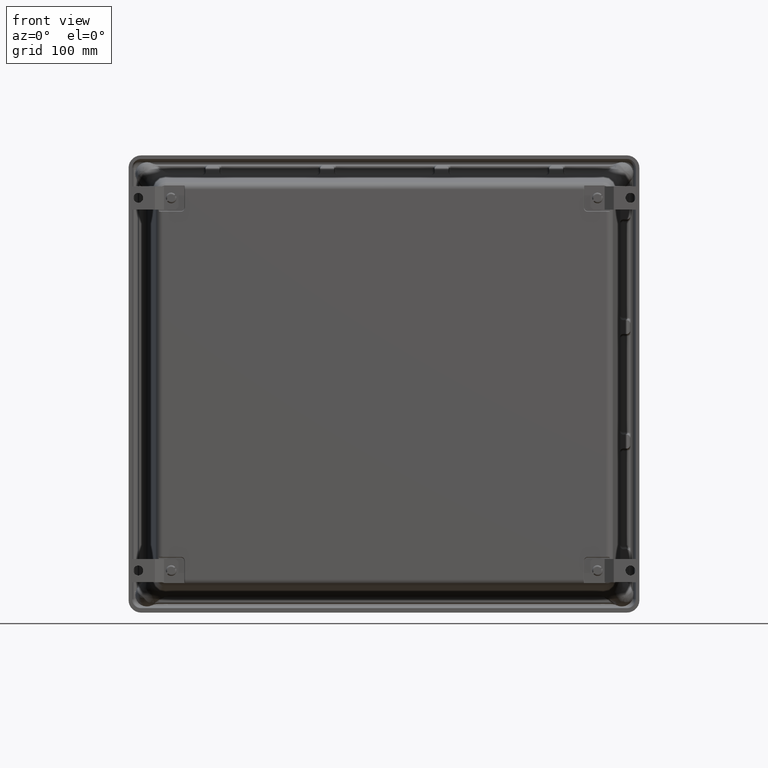
[diagram: clean part render]
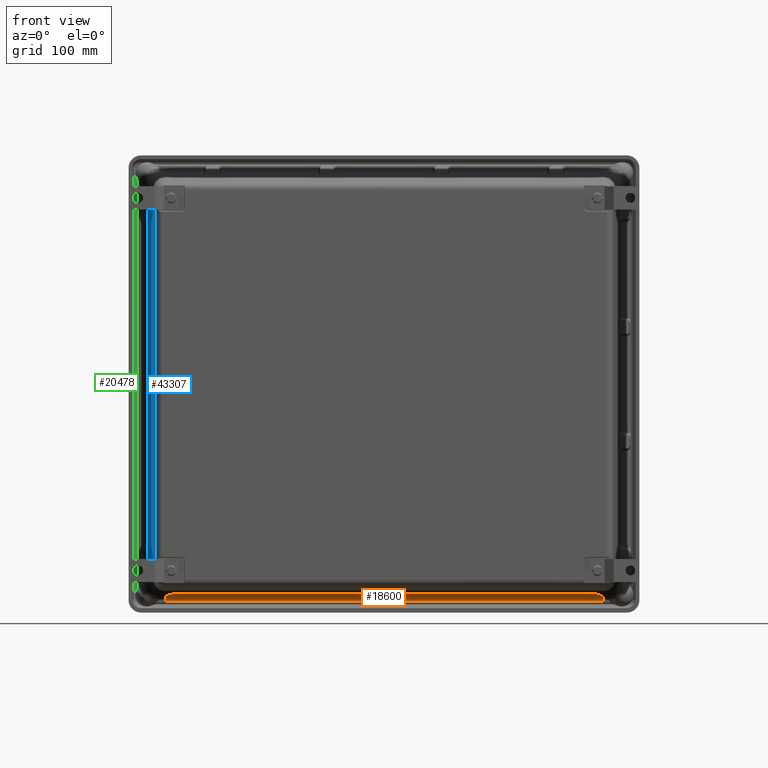
[diagram: same view with three faces highlighted in distinct colors, each labeled with its STEP entity id]
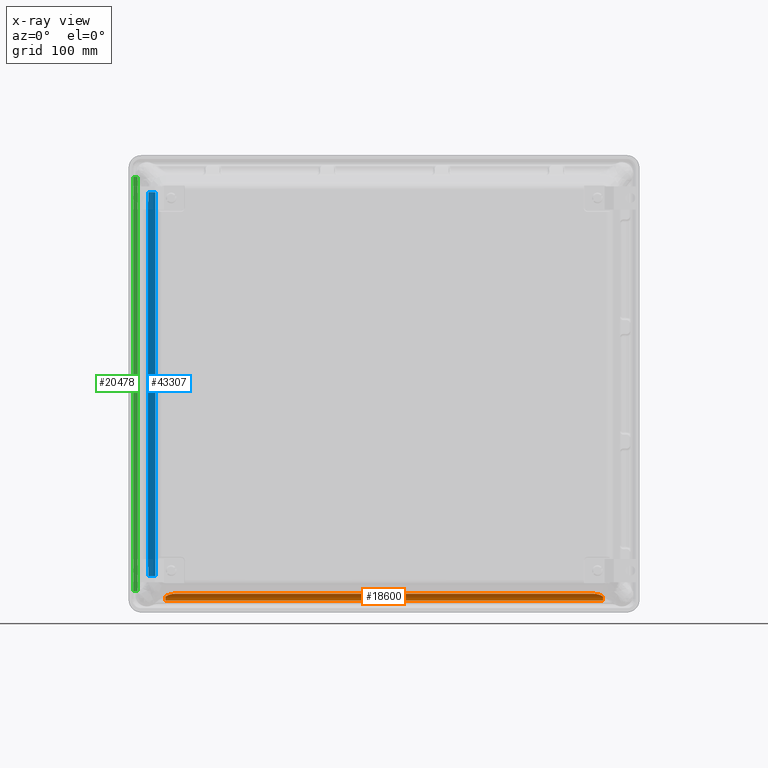
[diagram: x-ray of the same camera — body ghosted, the three highlighted faces saturated]
A machine part, front view with three faces highlighted in distinct colors.
The next image is the same camera in x-ray (body ghosted, the three faces saturated) — at least one of them is partly hidden behind the body in this view.
Their STEP definitions:

[orange] entity #18600 — the highlighted cylindrical surface (edge-blend (fillet) strip) has radius 6.3589 mm, axis along (-1, 0, 0).
#443 = ORIENTED_EDGE ( 'NONE', *, *, #1043, .T. ) ;
#774 = CARTESIAN_POINT ( 'NONE',  ( 7.307644187326540800, -0.4851430702196021200, -7.325131180635052500 ) ) ;
#1043 = EDGE_CURVE ( 'NONE', #43527, #33074, #24226, .T. ) ;
#2231 = CARTESIAN_POINT ( 'NONE',  ( -7.307748610823951600, -0.4851430702196021200, -7.325131180635052500 ) ) ;
#2262 = AXIS2_PLACEMENT_3D ( 'NONE', #19534, #43938, #23066 ) ;
#2320 = CARTESIAN_POINT ( 'NONE',  ( 7.654649388251297800, -0.4938801592190734100, -7.575328674179283800 ) ) ;
#2608 = ORIENTED_EDGE ( 'NONE', *, *, #38117, .T. ) ;
#2832 = CARTESIAN_POINT ( 'NONE',  ( 7.311278596396025600, -0.4829633852858825600, -7.325207296910189600 ) ) ;
#4670 = VERTEX_POINT ( 'NONE', #32727 ) ;
#4887 = ORIENTED_EDGE ( 'NONE', *, *, #40306, .F. ) ;
#5751 = CARTESIAN_POINT ( 'NONE',  ( -7.454800254234089400, -0.3984430998651526400, -7.343189957749108200 ) ) ;
#5828 = DIRECTION ( 'NONE',  ( 0.0000000000000000000, 0.0000000000000000000, 1.000000000000000000 ) ) ;
#6030 = CARTESIAN_POINT ( 'NONE',  ( 7.626260973653661100, -0.3085562811944240800, -7.405845636199021700 ) ) ;
#6186 = CARTESIAN_POINT ( 'NONE',  ( 7.540922641356059900, -0.3509637566787006700, -7.368943327736046100 ) ) ;
#6396 = CARTESIAN_POINT ( 'NONE',  ( -7.307748610823951600, -0.4851430702196021200, -7.325131180635052500 ) ) ;
#7211 = CYLINDRICAL_SURFACE ( 'NONE', #12371, 0.2503500000000002400 ) ;
#9261 = CARTESIAN_POINT ( 'NONE',  ( -7.541033200216891600, -0.3509605507350813700, -7.368945633146834600 ) ) ;
#9387 = LINE ( 'NONE', #19415, #44422 ) ;
#9708 = CARTESIAN_POINT ( 'NONE',  ( 7.454684942134324600, -0.3984492872052181600, -7.343187342839638800 ) ) ;
#12047 = B_SPLINE_CURVE_WITH_KNOTS ( 'NONE', 3,
 ( #44594, #6030, #27232, #6186, #30709, #9708, #34250, #13268, #37752, #16819, #41213, #20346, #44743, #23864, #2832, #27380 ),
 .UNSPECIFIED., .F., .F.,
 ( 4, 2, 2, 2, 2, 2, 2, 4 ),
 ( 0.0000000000000000000, 0.002583851419641042700, 0.005167702839282085400, 0.007751554258923128500, 0.009043479968743649600, 0.009689442823653905000, 0.01001242425110903400, 0.01033540567856415900 ),
 .UNSPECIFIED. ) ;
#12371 = AXIS2_PLACEMENT_3D ( 'NONE', #40770, #16361, #26626 ) ;
#12834 = CARTESIAN_POINT ( 'NONE',  ( -7.626366922773665500, -0.3085556255294985600, -7.405846478179388900 ) ) ;
#13268 = CARTESIAN_POINT ( 'NONE',  ( 7.381604656308240000, -0.4410401677366284100, -7.330457110413918000 ) ) ;
#13413 = CARTESIAN_POINT ( 'NONE',  ( -7.654753811748701500, -0.2435301592190732800, -7.575328674179283800 ) ) ;
#15889 = DIRECTION ( 'NONE',  ( 1.000000000000000000, -0.0000000000000000000, -0.0000000000000000000 ) ) ;
#16230 = CARTESIAN_POINT ( 'NONE',  ( -7.367044221340008500, -0.4496483197026051600, -7.328276590104714200 ) ) ;
#16361 = DIRECTION ( 'NONE',  ( -1.000000000000000000, 0.0000000000000000000, 0.0000000000000000000 ) ) ;
#16819 = CARTESIAN_POINT ( 'NONE',  ( 7.344627679792869100, -0.4630108717277922600, -7.326849308496977500 ) ) ;
#17096 = ORIENTED_EDGE ( 'NONE', *, *, #22763, .F. ) ;
#17625 = VECTOR ( 'NONE', #32017, 39.37007874015748100 ) ;
#18600 = ADVANCED_FACE ( 'NONE', ( #35192 ), #7211, .F. ) ;
#18783 = ORIENTED_EDGE ( 'NONE', *, *, #43859, .T. ) ;
#19415 = CARTESIAN_POINT ( 'NONE',  ( -7.654753811748701500, -0.4851430702196021200, -7.325131180635052500 ) ) ;
#19534 = CARTESIAN_POINT ( 'NONE',  ( -7.654753811748701500, -0.4938801592190733000, -7.575328674179284700 ) ) ;
#20335 = EDGE_CURVE ( 'NONE', #43527, #29720, #9387, .T. ) ;
#20346 = CARTESIAN_POINT ( 'NONE',  ( 7.326128486072125400, -0.4740674944536984500, -7.325754002188293000 ) ) ;
#20466 = VERTEX_POINT ( 'NONE', #44416 ) ;
#21208 = CARTESIAN_POINT ( 'NONE',  ( -8.306665211748706300, -0.2435301592190732800, -7.575328674179283800 ) ) ;
#21931 = AXIS2_PLACEMENT_3D ( 'NONE', #2320, #26854, #5828 ) ;
#22763 = EDGE_CURVE ( 'NONE', #20466, #4670, #42620, .T. ) ;
#23066 = DIRECTION ( 'NONE',  ( 0.0000000000000000000, 0.0000000000000000000, 1.000000000000000000 ) ) ;
#23864 = CARTESIAN_POINT ( 'NONE',  ( 7.315026666566900800, -0.4807165543232932400, -7.325315123836371200 ) ) ;
#24226 = B_SPLINE_CURVE_WITH_KNOTS ( 'NONE', 3,
 ( #2231, #33663, #16230, #26782, #5751, #30289, #9261, #33815, #12834, #37310 ),
 .UNSPECIFIED., .F., .F.,
 ( 4, 2, 2, 2, 4 ),
 ( -3.096732728220901400E-005, 0.002599933525867290700, 0.005230834379016790400, 0.007861735232166289600, 0.01049263608531578900 ),
 .UNSPECIFIED. ) ;
#24876 = ORIENTED_EDGE ( 'NONE', *, *, #20335, .F. ) ;
#26626 = DIRECTION ( 'NONE',  ( 0.0000000000000000000, 0.0000000000000000000, 1.000000000000000000 ) ) ;
#26782 = CARTESIAN_POINT ( 'NONE',  ( -7.425763825110924400, -0.4151801925353658100, -7.337006406825636000 ) ) ;
#26854 = DIRECTION ( 'NONE',  ( -1.000000000000000000, 0.0000000000000000000, 0.0000000000000000000 ) ) ;
#27232 = CARTESIAN_POINT ( 'NONE',  ( 7.597892607710004900, -0.3220759877962736700, -7.392289508907745200 ) ) ;
#27380 = CARTESIAN_POINT ( 'NONE',  ( 7.307644187326540800, -0.4851430702196021200, -7.325131180635052500 ) ) ;
#29172 = VERTEX_POINT ( 'NONE', #13413 ) ;
#29720 = VERTEX_POINT ( 'NONE', #774 ) ;
#30289 = CARTESIAN_POINT ( 'NONE',  ( -7.512435701576558600, -0.3663350237214779700, -7.359160095577133900 ) ) ;
#30709 = CARTESIAN_POINT ( 'NONE',  ( 7.512323581338144200, -0.3663391901116866400, -7.359157560825496900 ) ) ;
#32017 = DIRECTION ( 'NONE',  ( -1.000000000000000000, 0.0000000000000000000, 0.0000000000000000000 ) ) ;
#32727 = CARTESIAN_POINT ( 'NONE',  ( 7.654649388251297800, -0.2435301592190732800, -7.575328674179283800 ) ) ;
#33074 = VERTEX_POINT ( 'NONE', #38689 ) ;
#33663 = CARTESIAN_POINT ( 'NONE',  ( -7.337353315952136700, -0.4673880711267855400, -7.325751198865698500 ) ) ;
#33815 = CARTESIAN_POINT ( 'NONE',  ( -7.598000080715815200, -0.3220745363809381400, -7.392290967473207400 ) ) ;
#34250 = CARTESIAN_POINT ( 'NONE',  ( 7.425646882901460800, -0.4151874411049083500, -7.337003941138752000 ) ) ;
#35192 = FACE_OUTER_BOUND ( 'NONE', #45098, .T. ) ;
#36206 = LINE ( 'NONE', #21208, #17625 ) ;
#37310 = CARTESIAN_POINT ( 'NONE',  ( -7.654753811748701500, -0.2963558275853975800, -7.421513002309772000 ) ) ;
#37752 = CARTESIAN_POINT ( 'NONE',  ( 7.366814539798837400, -0.4497996913356547800, -7.328729450393844000 ) ) ;
#38117 = EDGE_CURVE ( 'NONE', #33074, #29172, #42896, .T. ) ;
#38689 = CARTESIAN_POINT ( 'NONE',  ( -7.654753811748701500, -0.2963558275853975800, -7.421513002309772000 ) ) ;
#40306 = EDGE_CURVE ( 'NONE', #4670, #29172, #36206, .T. ) ;
#40770 = CARTESIAN_POINT ( 'NONE',  ( -8.306665211748706300, -0.4938801592190733000, -7.575328674179283800 ) ) ;
#41213 = CARTESIAN_POINT ( 'NONE',  ( 7.337229033369808000, -0.4674281502036570200, -7.326340405264641500 ) ) ;
#42620 = CIRCLE ( 'NONE', #21931, 0.2503500000000002400 ) ;
#42896 = CIRCLE ( 'NONE', #2262, 0.2503500000000002400 ) ;
#43527 = VERTEX_POINT ( 'NONE', #6396 ) ;
#43859 = EDGE_CURVE ( 'NONE', #20466, #29720, #12047, .T. ) ;
#43938 = DIRECTION ( 'NONE',  ( -1.000000000000000000, 0.0000000000000000000, 0.0000000000000000000 ) ) ;
#44416 = CARTESIAN_POINT ( 'NONE',  ( 7.654649388251297800, -0.2963558275853954700, -7.421513002309772800 ) ) ;
#44422 = VECTOR ( 'NONE', #15889, 39.37007874015748100 ) ;
#44594 = CARTESIAN_POINT ( 'NONE',  ( 7.654649388251297800, -0.2963558275853954700, -7.421513002309772800 ) ) ;
#44743 = CARTESIAN_POINT ( 'NONE',  ( 7.322428092010362400, -0.4762827169210109800, -7.325588036970418500 ) ) ;
#45098 = EDGE_LOOP ( 'NONE', ( #17096, #18783, #24876, #443, #2608, #4887 ) ) ;

[blue] entity #43307 — the highlighted planar face has unit normal (-0.9994, -0.0349, 0).
#139 = CARTESIAN_POINT ( 'NONE',  ( -8.247879675952685100, -0.9309927066703646000, 6.716343695951409600 ) ) ;
#499 = CARTESIAN_POINT ( 'NONE',  ( -8.257484352773195400, -0.6559507485377984400, -6.409027597303401400 ) ) ;
#1199 = EDGE_CURVE ( 'NONE', #9947, #36485, #2463, .T. ) ;
#2101 = EDGE_CURVE ( 'NONE', #36438, #11123, #12102, .T. ) ;
#2254 = ORIENTED_EDGE ( 'NONE', *, *, #32558, .T. ) ;
#2286 = CARTESIAN_POINT ( 'NONE',  ( -8.251797798547007900, -0.8187923556659197900, 6.540073118754048000 ) ) ;
#2463 = LINE ( 'NONE', #24175, #16749 ) ;
#2508 = EDGE_CURVE ( 'NONE', #29608, #8979, #30349, .T. ) ;
#4028 = CARTESIAN_POINT ( 'NONE',  ( -8.255054279617036500, -0.7255389389335186200, -6.455391636318247500 ) ) ;
#4396 = ORIENTED_EDGE ( 'NONE', *, *, #22747, .T. ) ;
#4482 = ORIENTED_EDGE ( 'NONE', *, *, #2101, .T. ) ;
#4596 = PLANE ( 'NONE',  #31251 ) ;
#4933 = LINE ( 'NONE', #35172, #42155 ) ;
#5800 = CARTESIAN_POINT ( 'NONE',  ( -8.253354736003819500, -0.7742075003069363000, 6.494900140087128900 ) ) ;
#7536 = CARTESIAN_POINT ( 'NONE',  ( -8.253354617383134700, -0.7742108971589746200, -6.494995443011009500 ) ) ;
#7906 = CARTESIAN_POINT ( 'NONE',  ( -8.004937644646560100, -7.887942248218545100, 6.716343695951409600 ) ) ;
#8083 = DIRECTION ( 'NONE',  ( -0.9993908270190957600, -0.03489949670250101100, 1.628259326481935800E-016 ) ) ;
#8979 = VERTEX_POINT ( 'NONE', #7906 ) ;
#9314 = CARTESIAN_POINT ( 'NONE',  ( -8.255054437703762500, -0.7255344119219654400, 6.455296094528594400 ) ) ;
#9455 = VECTOR ( 'NONE', #20905, 39.37007874015748100 ) ;
#9947 = VERTEX_POINT ( 'NONE', #29747 ) ;
#10592 = DIRECTION ( 'NONE',  ( 1.629251822671396000E-016, -7.699026879608001300E-034, 1.000000000000000000 ) ) ;
#10805 = DIRECTION ( 'NONE',  ( -0.03489949670250101100, 0.9993908270190957600, 0.0000000000000000000 ) ) ;
#11078 = CARTESIAN_POINT ( 'NONE',  ( -8.251797716877110400, -0.8187946943858234200, -6.540167992619317700 ) ) ;
#11123 = VERTEX_POINT ( 'NONE', #28521 ) ;
#11688 = VECTOR ( 'NONE', #10592, 39.37007874015748100 ) ;
#12102 = B_SPLINE_CURVE_WITH_KNOTS ( 'NONE', 3,
 ( #21569, #42443, #499, #25073, #4028, #28570, #7536, #32067, #11078, #35576, #14618, #39083, #18178, #42582 ),
 .UNSPECIFIED., .F., .F.,
 ( 4, 2, 2, 2, 2, 2, 4 ),
 ( -2.809916676400758500E-005, 0.003180721168282206400, 0.004785131335805338200, 0.006389541503328469500, 0.007993951670851600800, 0.009598361838374732200, 0.01280718217342106900 ),
 .UNSPECIFIED. ) ;
#12890 = CARTESIAN_POINT ( 'NONE',  ( -8.256873071062848600, -0.6734555664224651800, 6.420367124764810600 ) ) ;
#14282 = CARTESIAN_POINT ( 'NONE',  ( -8.260066450263392900, -0.5820091508073409500, -6.368717038573833200 ) ) ;
#14305 = EDGE_LOOP ( 'NONE', ( #34529, #17116, #42432, #28785, #26699, #2254, #4396, #4482 ) ) ;
#14618 = CARTESIAN_POINT ( 'NONE',  ( -8.250430751166359000, -0.8579394707078998900, -6.589406240043008000 ) ) ;
#14727 = VECTOR ( 'NONE', #36938, 39.37007874015748900 ) ;
#14742 = CARTESIAN_POINT ( 'NONE',  ( -8.263449088335162800, -0.4851430702196021200, 6.367223695910734400 ) ) ;
#16425 = CARTESIAN_POINT ( 'NONE',  ( -8.258454490103819300, -0.6281696502188470800, 6.393849763910563600 ) ) ;
#16749 = VECTOR ( 'NONE', #34692, 39.37007874015748900 ) ;
#16976 = LINE ( 'NONE', #30065, #14727 ) ;
#17116 = ORIENTED_EDGE ( 'NONE', *, *, #2508, .T. ) ;
#17564 = EDGE_CURVE ( 'NONE', #35327, #9947, #34539, .T. ) ;
#17579 = DIRECTION ( 'NONE',  ( -0.03489949670250101100, 0.9993908270190957600, 5.686006861286415000E-018 ) ) ;
#18178 = CARTESIAN_POINT ( 'NONE',  ( -8.248505399687577000, -0.9130743233129103900, -6.678180365332896600 ) ) ;
#18846 = LINE ( 'NONE', #34644, #9455 ) ;
#19796 = CARTESIAN_POINT ( 'NONE',  ( -8.249210131349729000, -0.8928934489389830400, 6.641333158529783500 ) ) ;
#19954 = CARTESIAN_POINT ( 'NONE',  ( -8.259418998886149100, -0.6005497324343681600, 6.378565622634207300 ) ) ;
#20905 = DIRECTION ( 'NONE',  ( -1.629251822671396000E-016, 7.699026879608001300E-034, -1.000000000000000000 ) ) ;
#21569 = CARTESIAN_POINT ( 'NONE',  ( -8.260066450263392900, -0.5820091508073409500, -6.368717038573833200 ) ) ;
#22747 = EDGE_CURVE ( 'NONE', #33913, #36438, #16976, .T. ) ;
#23336 = CARTESIAN_POINT ( 'NONE',  ( -8.250865171873803300, -0.8454992892981572100, 6.572494162442026800 ) ) ;
#23484 = CARTESIAN_POINT ( 'NONE',  ( -8.260066450263389400, -0.5820091508073383900, 6.368624830476642600 ) ) ;
#24175 = CARTESIAN_POINT ( 'NONE',  ( -8.287224571990279300, 0.1956977016521380100, 6.357375568128786000 ) ) ;
#25073 = CARTESIAN_POINT ( 'NONE',  ( -8.255649911793593500, -0.7084822650622101300, -6.443333396247858500 ) ) ;
#26699 = ORIENTED_EDGE ( 'NONE', *, *, #1199, .T. ) ;
#26830 = CARTESIAN_POINT ( 'NONE',  ( -8.252299806760433400, -0.8044167213160761100, 6.524377000463711200 ) ) ;
#27400 = FACE_OUTER_BOUND ( 'NONE', #14305, .T. ) ;
#28521 = CARTESIAN_POINT ( 'NONE',  ( -8.247879675952686900, -0.9309927066703622700, -6.716435904048592100 ) ) ;
#28570 = CARTESIAN_POINT ( 'NONE',  ( -8.253906606706563000, -0.7584039910837464500, -6.481221649254329100 ) ) ;
#28785 = ORIENTED_EDGE ( 'NONE', *, *, #17564, .T. ) ;
#29107 = CARTESIAN_POINT ( 'NONE',  ( -8.280628811748703900, 0.006819840780926731900, -6.716435904048592100 ) ) ;
#29608 = VERTEX_POINT ( 'NONE', #45146 ) ;
#29747 = CARTESIAN_POINT ( 'NONE',  ( -8.260066450263389400, -0.5820091508073383900, 6.368624830476642600 ) ) ;
#30065 = CARTESIAN_POINT ( 'NONE',  ( -8.280449127588891400, 0.001674359669581945100, -6.360274257188136100 ) ) ;
#30338 = CARTESIAN_POINT ( 'NONE',  ( -8.253906738230613300, -0.7584002247277400500, 6.481126256803309900 ) ) ;
#30349 = LINE ( 'NONE', #42094, #11688 ) ;
#31251 = AXIS2_PLACEMENT_3D ( 'NONE', #29107, #8083, #32635 ) ;
#31471 = CARTESIAN_POINT ( 'NONE',  ( -8.280628811748700400, 0.006819840780926731900, 6.716343695951409600 ) ) ;
#32067 = CARTESIAN_POINT ( 'NONE',  ( -8.252299712420216000, -0.8044194228664787200, -6.524472064337731900 ) ) ;
#32558 = EDGE_CURVE ( 'NONE', #36485, #33913, #18846, .T. ) ;
#32635 = DIRECTION ( 'NONE',  ( 0.03489949670250101100, -0.9993908270190957600, 0.0000000000000000000 ) ) ;
#33713 = CARTESIAN_POINT ( 'NONE',  ( -8.248505410214138000, -0.9130740218715922600, 6.678087513662024600 ) ) ;
#33864 = CARTESIAN_POINT ( 'NONE',  ( -8.255650083508401200, -0.7084773477934905900, 6.443237793418958000 ) ) ;
#33913 = VERTEX_POINT ( 'NONE', #44698 ) ;
#34080 = VECTOR ( 'NONE', #17579, 39.37007874015748900 ) ;
#34529 = ORIENTED_EDGE ( 'NONE', *, *, #42294, .F. ) ;
#34539 = B_SPLINE_CURVE_WITH_KNOTS ( 'NONE', 3,
 ( #40534, #33713, #19796, #44200, #23336, #2286, #26830, #5800, #30338, #9314, #33864, #12890, #37359, #16425, #40835, #19954, #44349, #23484 ),
 .UNSPECIFIED., .F., .F.,
 ( 4, 2, 2, 2, 2, 2, 2, 2, 4 ),
 ( 3.469446951953614200E-018, 0.003184403749687734800, 0.004776605624531635300, 0.006368807499375535500, 0.007961009374219436500, 0.009553211249063336600, 0.01114541312390723500, 0.01194151406132920600, 0.01273761499875118400 ),
 .UNSPECIFIED. ) ;
#34644 = CARTESIAN_POINT ( 'NONE',  ( -8.263449088335164600, -0.4851430702196021200, -6.716435904048592100 ) ) ;
#34692 = DIRECTION ( 'NONE',  ( -0.03489585077468926300, 0.9992864213068273200, -0.01445433466142407600 ) ) ;
#35172 = CARTESIAN_POINT ( 'NONE',  ( -8.280628811748703900, 0.006819840780926751000, -6.716435904048592100 ) ) ;
#35327 = VERTEX_POINT ( 'NONE', #139 ) ;
#35576 = CARTESIAN_POINT ( 'NONE',  ( -8.250865112340193300, -0.8455009941177360500, -6.572588613476603400 ) ) ;
#36438 = VERTEX_POINT ( 'NONE', #14282 ) ;
#36485 = VERTEX_POINT ( 'NONE', #14742 ) ;
#36938 = DIRECTION ( 'NONE',  ( 0.03489585077468926300, -0.9992864213068273200, -0.01445433466142429100 ) ) ;
#37359 = CARTESIAN_POINT ( 'NONE',  ( -8.257500141381822100, -0.6554986219420850800, 6.409544087565635100 ) ) ;
#39083 = CARTESIAN_POINT ( 'NONE',  ( -8.249210107669426900, -0.8928941270542524200, -6.641426603822094600 ) ) ;
#39640 = EDGE_CURVE ( 'NONE', #8979, #35327, #43334, .T. ) ;
#40534 = CARTESIAN_POINT ( 'NONE',  ( -8.247879675952685100, -0.9309927066703646000, 6.716343695951409600 ) ) ;
#40835 = CARTESIAN_POINT ( 'NONE',  ( -8.258775020819078000, -0.6189908514717241700, 6.388707691269932100 ) ) ;
#42094 = CARTESIAN_POINT ( 'NONE',  ( -8.004937644646563700, -7.887942248218545100, -6.716435904048592100 ) ) ;
#42155 = VECTOR ( 'NONE', #10805, 39.37007874015748900 ) ;
#42294 = EDGE_CURVE ( 'NONE', #29608, #11123, #4933, .T. ) ;
#42432 = ORIENTED_EDGE ( 'NONE', *, *, #39640, .T. ) ;
#42443 = CARTESIAN_POINT ( 'NONE',  ( -8.258769239143662200, -0.6191564169933077000, -6.388508257037021700 ) ) ;
#42582 = CARTESIAN_POINT ( 'NONE',  ( -8.247879675952686900, -0.9309927066703622700, -6.716435904048592100 ) ) ;
#43307 = ADVANCED_FACE ( 'NONE', ( #27400 ), #4596, .T. ) ;
#43334 = LINE ( 'NONE', #31471, #34080 ) ;
#44200 = CARTESIAN_POINT ( 'NONE',  ( -8.250430800931072300, -0.8579380456328904400, 6.589312025127198600 ) ) ;
#44349 = CARTESIAN_POINT ( 'NONE',  ( -8.259744615171197100, -0.5912253020226518900, 6.373534986213425800 ) ) ;
#44698 = CARTESIAN_POINT ( 'NONE',  ( -8.263449088335164600, -0.4851430702196021200, -6.367315904007903700 ) ) ;
#45146 = CARTESIAN_POINT ( 'NONE',  ( -8.004937644646563700, -7.887942248218545100, -6.716435904048592100 ) ) ;

[green] entity #20478 — the highlighted cylindrical surface (edge-blend (fillet) strip) has radius 3.9624 mm, axis along (-0, 0, 1).
#392 = CARTESIAN_POINT ( 'NONE',  ( -8.614366759616229900, 0.8700000000000000000, -7.237684245712326700 ) ) ;
#1214 = CARTESIAN_POINT ( 'NONE',  ( -8.614366759616229900, 0.8700000000000000000, -7.527999999999998700 ) ) ;
#2570 = CIRCLE ( 'NONE', #8419, 0.1560000000000001900 ) ;
#3892 = FACE_OUTER_BOUND ( 'NONE', #44006, .T. ) ;
#4212 = CARTESIAN_POINT ( 'NONE',  ( -8.770152967037946100, 0.7221644091738994600, 7.557999999999997200 ) ) ;
#4521 = VECTOR ( 'NONE', #22413, 39.37007874015748100 ) ;
#5090 = ORIENTED_EDGE ( 'NONE', *, *, #19425, .F. ) ;
#5379 = EDGE_CURVE ( 'NONE', #14134, #26991, #23104, .T. ) ;
#7333 = CARTESIAN_POINT ( 'NONE',  ( -8.614366759616231700, 0.8700000000000000000, 7.237684245712315200 ) ) ;
#8419 = AXIS2_PLACEMENT_3D ( 'NONE', #17261, #41653, #20784 ) ;
#13856 = LINE ( 'NONE', #1214, #4521 ) ;
#14134 = VERTEX_POINT ( 'NONE', #7333 ) ;
#17261 = CARTESIAN_POINT ( 'NONE',  ( -8.614366759616229900, 0.7140000000000000800, -7.237684245712326700 ) ) ;
#17832 = DIRECTION ( 'NONE',  ( -1.620759263363291000E-016, -3.283471146231082200E-016, 1.000000000000000000 ) ) ;
#18014 = AXIS2_PLACEMENT_3D ( 'NONE', #34070, #41041, #20176 ) ;
#18922 = AXIS2_PLACEMENT_3D ( 'NONE', #38734, #17832, #42237 ) ;
#19416 = VECTOR ( 'NONE', #26034, 39.37007874015748100 ) ;
#19425 = EDGE_CURVE ( 'NONE', #14134, #24548, #13856, .T. ) ;
#20176 = DIRECTION ( 'NONE',  ( 1.000000000000000000, 0.0000000000000000000, 0.0000000000000000000 ) ) ;
#20478 = ADVANCED_FACE ( 'NONE', ( #3892 ), #38945, .F. ) ;
#20784 = DIRECTION ( 'NONE',  ( 1.000000000000000000, 0.0000000000000000000, -7.004738445292974100E-015 ) ) ;
#22413 = DIRECTION ( 'NONE',  ( 1.448679832249377700E-016, 0.0000000000000000000, -1.000000000000000000 ) ) ;
#23104 = CIRCLE ( 'NONE', #18922, 0.1560000000000000000 ) ;
#24548 = VERTEX_POINT ( 'NONE', #392 ) ;
#26034 = DIRECTION ( 'NONE',  ( -1.448679832249377700E-016, -0.0000000000000000000, 1.000000000000000000 ) ) ;
#26991 = VERTEX_POINT ( 'NONE', #36431 ) ;
#27561 = ORIENTED_EDGE ( 'NONE', *, *, #45355, .F. ) ;
#28702 = LINE ( 'NONE', #4212, #19416 ) ;
#32099 = EDGE_CURVE ( 'NONE', #35304, #26991, #28702, .T. ) ;
#34070 = CARTESIAN_POINT ( 'NONE',  ( -8.614366759616231700, 0.7140000000000000800, 7.558000000000000700 ) ) ;
#34771 = CARTESIAN_POINT ( 'NONE',  ( -8.770152967037942600, 0.7221644091738994600, -7.237684245712325800 ) ) ;
#35304 = VERTEX_POINT ( 'NONE', #34771 ) ;
#36431 = CARTESIAN_POINT ( 'NONE',  ( -8.770152967037946100, 0.7221644091738994600, 7.237684245712315200 ) ) ;
#38734 = CARTESIAN_POINT ( 'NONE',  ( -8.614366759616231700, 0.7139999999999999700, 7.237684245712315200 ) ) ;
#38945 = CYLINDRICAL_SURFACE ( 'NONE', #18014, 0.1560000000000001900 ) ;
#41041 = DIRECTION ( 'NONE',  ( -1.448679832249377700E-016, 0.0000000000000000000, 1.000000000000000000 ) ) ;
#41653 = DIRECTION ( 'NONE',  ( 7.014351370064854500E-015, -0.0000000000000000000, 1.000000000000000000 ) ) ;
#42043 = ORIENTED_EDGE ( 'NONE', *, *, #5379, .T. ) ;
#42237 = DIRECTION ( 'NONE',  ( 0.0000000000000000000, -1.000000000000000000, 0.0000000000000000000 ) ) ;
#42411 = ORIENTED_EDGE ( 'NONE', *, *, #32099, .F. ) ;
#44006 = EDGE_LOOP ( 'NONE', ( #42043, #42411, #27561, #5090 ) ) ;
#45355 = EDGE_CURVE ( 'NONE', #24548, #35304, #2570, .T. ) ;